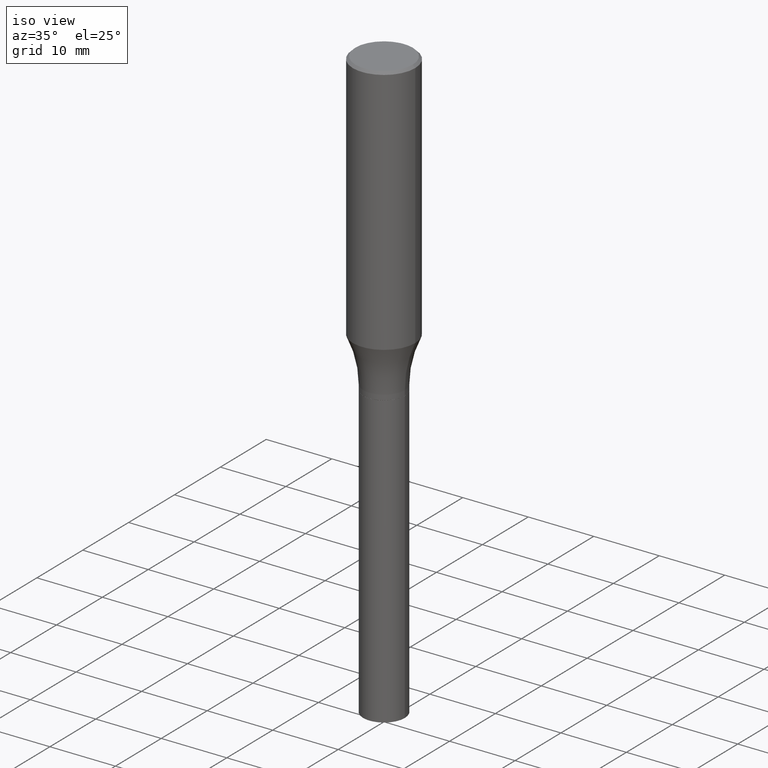
[diagram: clean part render]
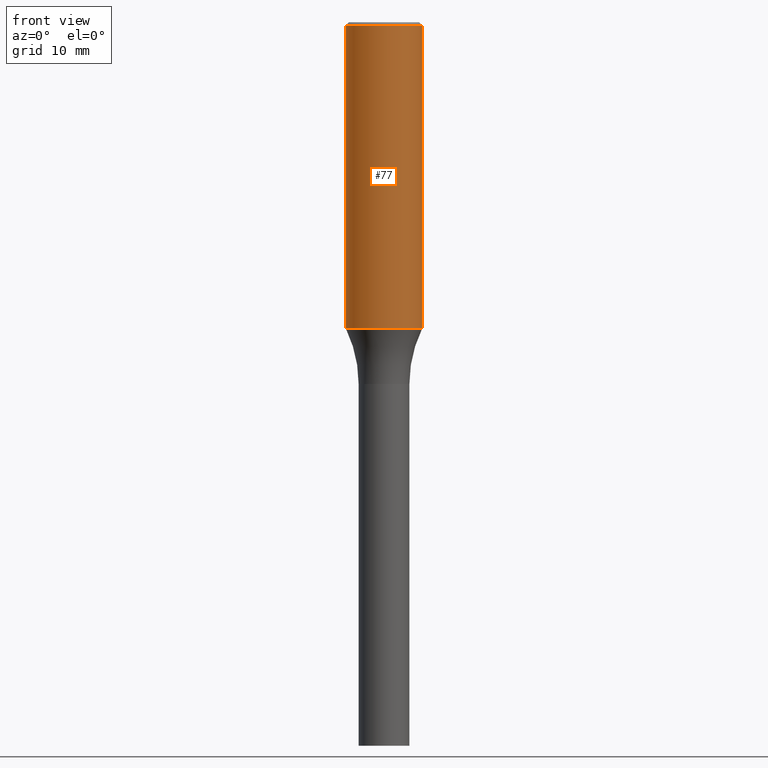
[diagram: tour spotlight — one face highlighted and labeled with its STEP entity id]
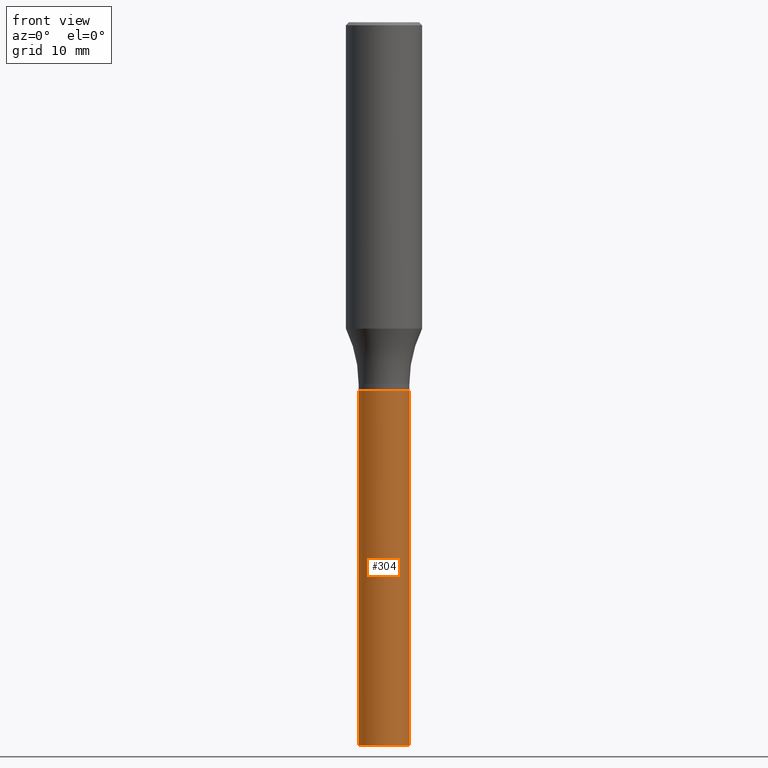
[diagram: tour spotlight — one face highlighted and labeled with its STEP entity id]
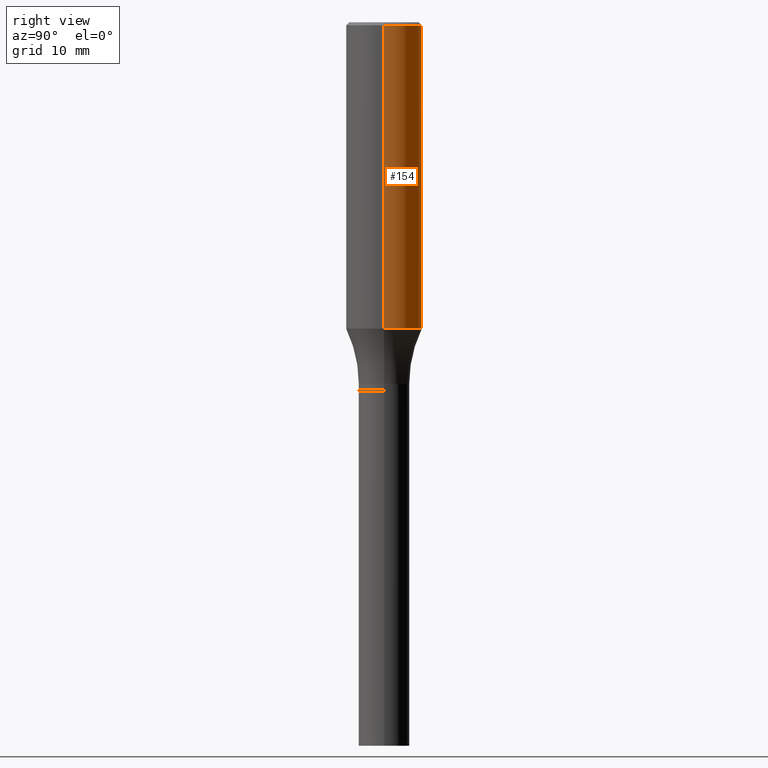
[diagram: tour spotlight — one face highlighted and labeled with its STEP entity id]
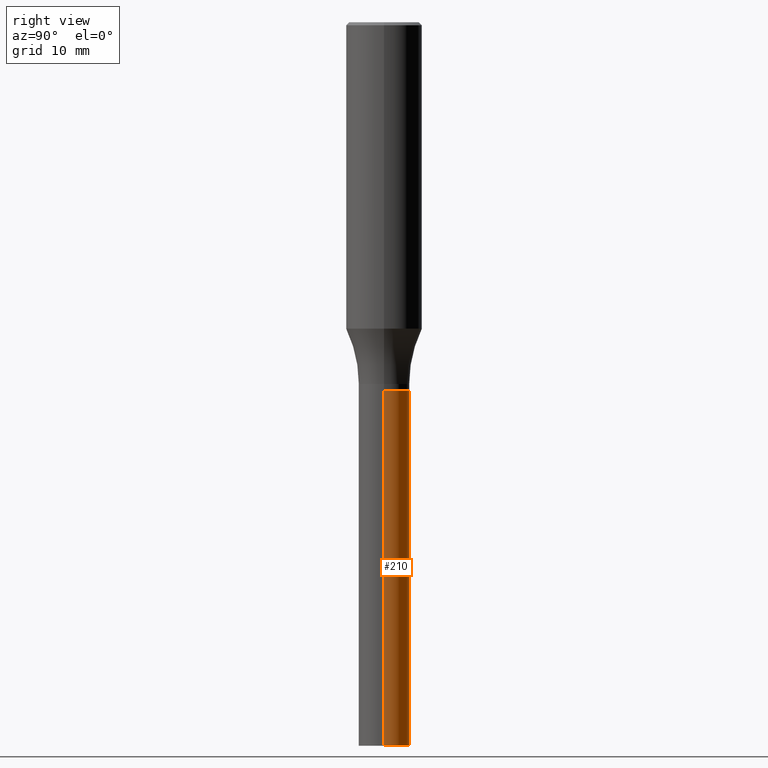
[diagram: tour spotlight — one face highlighted and labeled with its STEP entity id]
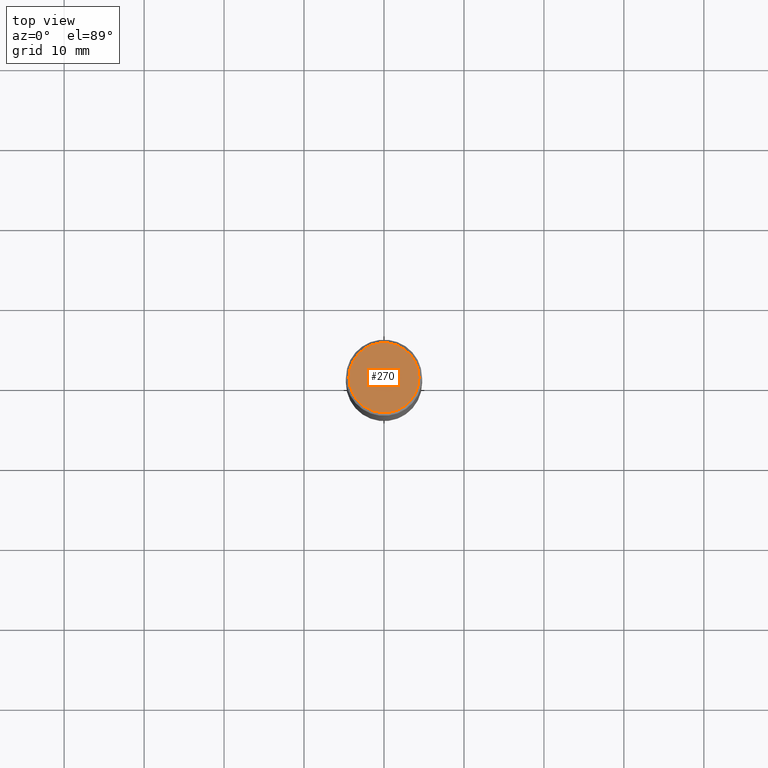
[diagram: tour spotlight — one face highlighted and labeled with its STEP entity id]
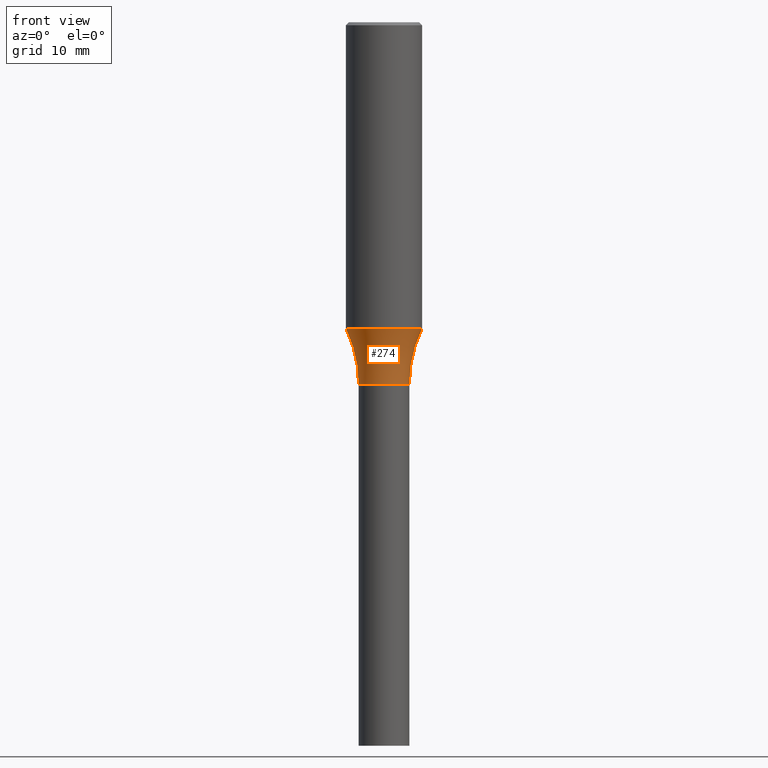
[diagram: tour spotlight — one face highlighted and labeled with its STEP entity id]
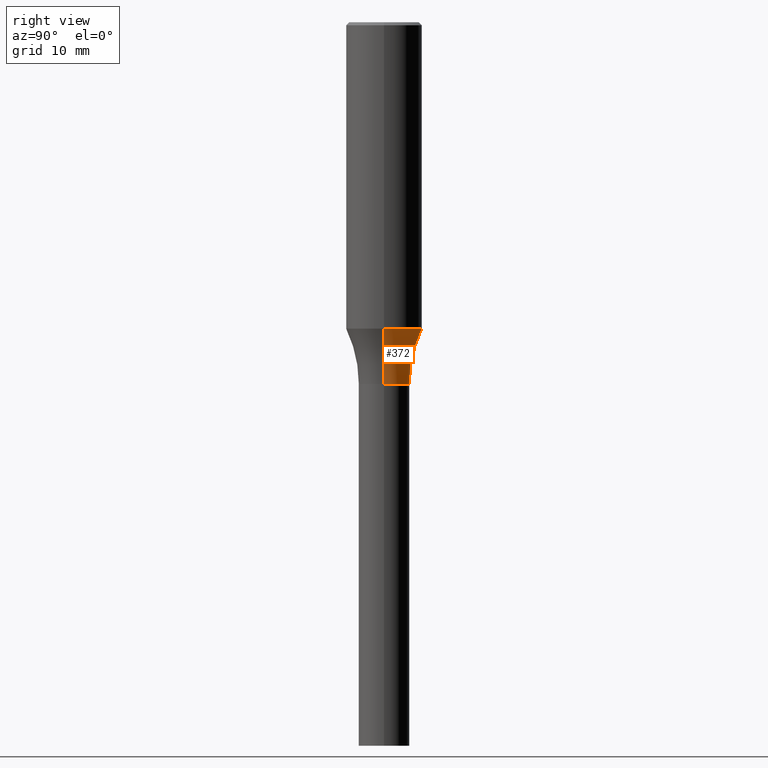
[diagram: tour spotlight — one face highlighted and labeled with its STEP entity id]
A machine part: a face-by-face anatomy tour. The part has 16 B-rep faces; the first image is the clean iso view, then the 7 largest visible faces are spotlighted one at a time (largest first), each with its STEP entity span.

Face 1 — front view, entity #77. In plain terms, the highlighted cylindrical surface (partial cylindrical patch) has radius 4.7625 mm, axis along (-0, 0, 1).
Definition (entity closure, byte-faithful):
#9 = CARTESIAN_POINT ( 'NONE',  ( 0.1875000000000000278, -1.338715594664809642E-15, -0.01499999999999999944 ) ) ;
#31 = AXIS2_PLACEMENT_3D ( 'NONE', #198, #259, #453 ) ;
#36 = DIRECTION ( 'NONE',  ( 1.000000000000000000, -6.982962677686265922E-15, 4.876176775795935793E-29 ) ) ;
#48 = LINE ( 'NONE', #295, #465 ) ;
#62 = AXIS2_PLACEMENT_3D ( 'NONE', #118, #78, #36 ) ;
#77 = ADVANCED_FACE ( 'NONE', ( #342 ), #339, .T. ) ;
#78 = DIRECTION ( 'NONE',  ( -2.445468806185136597E-29, 3.491481338843145583E-15, 1.000000000000000000 ) ) ;
#89 = EDGE_CURVE ( 'NONE', #356, #435, #296, .T. ) ;
#109 = DIRECTION ( 'NONE',  ( -2.445468806185136877E-29, 3.491481338843145188E-15, 1.000000000000000000 ) ) ;
#118 = CARTESIAN_POINT ( 'NONE',  ( 0.000000000000000000, 0.000000000000000000, 0.000000000000000000 ) ) ;
#119 = DIRECTION ( 'NONE',  ( -2.445468806185136877E-29, 3.491481338843145188E-15, 1.000000000000000000 ) ) ;
#142 = ORIENTED_EDGE ( 'NONE', *, *, #300, .F. ) ;
#160 = CARTESIAN_POINT ( 'NONE',  ( 0.1875000000000000555, -6.576445371591104685E-15, -1.508568816028707404 ) ) ;
#169 = CARTESIAN_POINT ( 'NONE',  ( -0.1875000000000000278, 1.256933281983527732E-15, -0.01499999999999999944 ) ) ;
#185 = DIRECTION ( 'NONE',  ( 1.000000000000000000, -6.982962677686265922E-15, 0.000000000000000000 ) ) ;
#194 = AXIS2_PLACEMENT_3D ( 'NONE', #260, #225, #185 ) ;
#198 = CARTESIAN_POINT ( 'NONE',  ( 3.668203209277705088E-31, -5.237222008264718399E-17, -0.01499999999999999944 ) ) ;
#220 = CARTESIAN_POINT ( 'NONE',  ( 0.1875000000000000555, -1.309305502066175205E-15, 9.142831454617382414E-30 ) ) ;
#225 = DIRECTION ( 'NONE',  ( -2.445468806185136597E-29, 3.491481338843145583E-15, 1.000000000000000000 ) ) ;
#236 = CIRCLE ( 'NONE', #31, 0.1875000000000000278 ) ;
#246 = VERTEX_POINT ( 'NONE', #388 ) ;
#259 = DIRECTION ( 'NONE',  ( -2.445468806185136597E-29, 3.491481338843145583E-15, 1.000000000000000000 ) ) ;
#260 = CARTESIAN_POINT ( 'NONE',  ( 3.689157981581848142E-29, -5.267139869524930466E-15, -1.508568816028707404 ) ) ;
#267 = ORIENTED_EDGE ( 'NONE', *, *, #446, .F. ) ;
#272 = ORIENTED_EDGE ( 'NONE', *, *, #89, .T. ) ;
#282 = EDGE_CURVE ( 'NONE', #246, #356, #429, .T. ) ;
#295 = CARTESIAN_POINT ( 'NONE',  ( -0.1875000000000000555, 1.332267629550188243E-15, -9.223003294227950793E-30 ) ) ;
#296 = LINE ( 'NONE', #220, #331 ) ;
#300 = EDGE_CURVE ( 'NONE', #246, #410, #48, .T. ) ;
#331 = VECTOR ( 'NONE', #109, 39.37007874015748143 ) ;
#339 = CYLINDRICAL_SURFACE ( 'NONE', #62, 0.1875000000000000555 ) ;
#342 = FACE_OUTER_BOUND ( 'NONE', #353, .T. ) ;
#353 = EDGE_LOOP ( 'NONE', ( #142, #384, #272, #267 ) ) ;
#356 = VERTEX_POINT ( 'NONE', #160 ) ;
#384 = ORIENTED_EDGE ( 'NONE', *, *, #282, .T. ) ;
#388 = CARTESIAN_POINT ( 'NONE',  ( -0.1875000000000000555, -3.934872239974741828E-15, -1.508568816028707404 ) ) ;
#410 = VERTEX_POINT ( 'NONE', #169 ) ;
#429 = CIRCLE ( 'NONE', #194, 0.1875000000000000555 ) ;
#435 = VERTEX_POINT ( 'NONE', #9 ) ;
#446 = EDGE_CURVE ( 'NONE', #410, #435, #236, .T. ) ;
#453 = DIRECTION ( 'NONE',  ( 1.000000000000000000, -6.982962677686265922E-15, 0.000000000000000000 ) ) ;
#465 = VECTOR ( 'NONE', #119, 39.37007874015748143 ) ;

Face 2 — front view, entity #304. In plain terms, the highlighted cylindrical surface (edge-blend (fillet) strip) has radius 3.175 mm, axis along (-0, 0, 1).
Definition (entity closure, byte-faithful):
#3 = CARTESIAN_POINT ( 'NONE',  ( 0.1250000000000000555, -8.728703347107838319E-16, 6.095220969744923244E-30 ) ) ;
#8 = ORIENTED_EDGE ( 'NONE', *, *, #402, .T. ) ;
#10 = VECTOR ( 'NONE', #183, 39.37007874015748143 ) ;
#16 = VERTEX_POINT ( 'NONE', #49 ) ;
#49 = CARTESIAN_POINT ( 'NONE',  ( 0.1250000000000000555, -7.199434520694563130E-15, -1.811999999999999611 ) ) ;
#61 = CARTESIAN_POINT ( 'NONE',  ( 4.431189476807466720E-29, -6.326564185983779002E-15, -1.811999999999999611 ) ) ;
#84 = DIRECTION ( 'NONE',  ( 1.000000000000000000, -6.982962677686267499E-15, 0.000000000000000000 ) ) ;
#92 = AXIS2_PLACEMENT_3D ( 'NONE', #61, #234, #84 ) ;
#102 = CARTESIAN_POINT ( 'NONE',  ( 0.1250000000000000555, -1.330952686367006701E-14, -3.561999999999999833 ) ) ;
#107 = CIRCLE ( 'NONE', #381, 0.1250000000000000555 ) ;
#125 = EDGE_CURVE ( 'NONE', #401, #189, #107, .T. ) ;
#138 = VERTEX_POINT ( 'NONE', #241 ) ;
#144 = EDGE_LOOP ( 'NONE', ( #277, #398, #8, #162 ) ) ;
#162 = ORIENTED_EDGE ( 'NONE', *, *, #450, .F. ) ;
#176 = LINE ( 'NONE', #3, #261 ) ;
#183 = DIRECTION ( 'NONE',  ( -2.445468806185136877E-29, 3.491481338843145188E-15, 1.000000000000000000 ) ) ;
#188 = DIRECTION ( 'NONE',  ( -2.445468806185136597E-29, 3.491481338843145583E-15, 1.000000000000000000 ) ) ;
#189 = VERTEX_POINT ( 'NONE', #102 ) ;
#207 = LINE ( 'NONE', #216, #10 ) ;
#216 = CARTESIAN_POINT ( 'NONE',  ( -0.1250000000000000555, 8.881784197001256268E-16, -6.148668862818635730E-30 ) ) ;
#218 = DIRECTION ( 'NONE',  ( -2.445468806185136877E-29, 3.491481338843145188E-15, 1.000000000000000000 ) ) ;
#219 = DIRECTION ( 'NONE',  ( -2.445468806185136597E-29, 3.491481338843145583E-15, 1.000000000000000000 ) ) ;
#234 = DIRECTION ( 'NONE',  ( -2.445468806185136597E-29, 3.491481338843145583E-15, 1.000000000000000000 ) ) ;
#241 = CARTESIAN_POINT ( 'NONE',  ( -0.1250000000000000555, -8.493431937771405711E-15, -1.811999999999999611 ) ) ;
#256 = CARTESIAN_POINT ( 'NONE',  ( 0.000000000000000000, 0.000000000000000000, 0.000000000000000000 ) ) ;
#257 = FACE_OUTER_BOUND ( 'NONE', #144, .T. ) ;
#261 = VECTOR ( 'NONE', #218, 39.37007874015748143 ) ;
#275 = AXIS2_PLACEMENT_3D ( 'NONE', #256, #188, #341 ) ;
#277 = ORIENTED_EDGE ( 'NONE', *, *, #385, .F. ) ;
#285 = DIRECTION ( 'NONE',  ( 1.000000000000000000, -6.982962677686259611E-15, 0.000000000000000000 ) ) ;
#292 = CIRCLE ( 'NONE', #92, 0.1250000000000000555 ) ;
#304 = ADVANCED_FACE ( 'NONE', ( #257 ), #405, .T. ) ;
#341 = DIRECTION ( 'NONE',  ( 1.000000000000000000, -6.982962677686267499E-15, 4.876176775795936353E-29 ) ) ;
#359 = CARTESIAN_POINT ( 'NONE',  ( -0.1250000000000000555, -8.493431937771405711E-15, -3.561999999999999833 ) ) ;
#370 = CARTESIAN_POINT ( 'NONE',  ( 8.710759887631456325E-29, -1.243665652895928367E-14, -3.561999999999999833 ) ) ;
#381 = AXIS2_PLACEMENT_3D ( 'NONE', #370, #219, #285 ) ;
#385 = EDGE_CURVE ( 'NONE', #401, #138, #207, .T. ) ;
#398 = ORIENTED_EDGE ( 'NONE', *, *, #125, .T. ) ;
#401 = VERTEX_POINT ( 'NONE', #359 ) ;
#402 = EDGE_CURVE ( 'NONE', #189, #16, #176, .T. ) ;
#405 = CYLINDRICAL_SURFACE ( 'NONE', #275, 0.1250000000000000555 ) ;
#450 = EDGE_CURVE ( 'NONE', #138, #16, #292, .T. ) ;

Face 3 — right view, entity #154. In plain terms, the highlighted cylindrical surface (partial cylindrical patch) has radius 4.7625 mm, axis along (-0, 0, 1).
Definition (entity closure, byte-faithful):
#4 = CARTESIAN_POINT ( 'NONE',  ( 3.668203209277705088E-31, -5.237222008264718399E-17, -0.01499999999999999944 ) ) ;
#9 = CARTESIAN_POINT ( 'NONE',  ( 0.1875000000000000278, -1.338715594664809642E-15, -0.01499999999999999944 ) ) ;
#13 = ORIENTED_EDGE ( 'NONE', *, *, #89, .F. ) ;
#20 = CARTESIAN_POINT ( 'NONE',  ( 0.000000000000000000, 0.000000000000000000, 0.000000000000000000 ) ) ;
#25 = ORIENTED_EDGE ( 'NONE', *, *, #121, .F. ) ;
#26 = CYLINDRICAL_SURFACE ( 'NONE', #371, 0.1875000000000000555 ) ;
#48 = LINE ( 'NONE', #295, #465 ) ;
#70 = ORIENTED_EDGE ( 'NONE', *, *, #300, .T. ) ;
#75 = DIRECTION ( 'NONE',  ( -2.445468806185136597E-29, 3.491481338843145583E-15, 1.000000000000000000 ) ) ;
#89 = EDGE_CURVE ( 'NONE', #356, #435, #296, .T. ) ;
#97 = CARTESIAN_POINT ( 'NONE',  ( 3.689157981581848142E-29, -5.267139869524930466E-15, -1.508568816028707404 ) ) ;
#105 = ORIENTED_EDGE ( 'NONE', *, *, #150, .T. ) ;
#109 = DIRECTION ( 'NONE',  ( -2.445468806185136877E-29, 3.491481338843145188E-15, 1.000000000000000000 ) ) ;
#119 = DIRECTION ( 'NONE',  ( -2.445468806185136877E-29, 3.491481338843145188E-15, 1.000000000000000000 ) ) ;
#121 = EDGE_CURVE ( 'NONE', #435, #410, #343, .T. ) ;
#145 = AXIS2_PLACEMENT_3D ( 'NONE', #4, #75, #400 ) ;
#150 = EDGE_CURVE ( 'NONE', #356, #246, #355, .T. ) ;
#154 = ADVANCED_FACE ( 'NONE', ( #273 ), #26, .T. ) ;
#160 = CARTESIAN_POINT ( 'NONE',  ( 0.1875000000000000555, -6.576445371591104685E-15, -1.508568816028707404 ) ) ;
#169 = CARTESIAN_POINT ( 'NONE',  ( -0.1875000000000000278, 1.256933281983527732E-15, -0.01499999999999999944 ) ) ;
#202 = DIRECTION ( 'NONE',  ( -2.445468806185136597E-29, 3.491481338843145583E-15, 1.000000000000000000 ) ) ;
#220 = CARTESIAN_POINT ( 'NONE',  ( 0.1875000000000000555, -1.309305502066175205E-15, 9.142831454617382414E-30 ) ) ;
#246 = VERTEX_POINT ( 'NONE', #388 ) ;
#250 = AXIS2_PLACEMENT_3D ( 'NONE', #97, #202, #354 ) ;
#273 = FACE_OUTER_BOUND ( 'NONE', #303, .T. ) ;
#295 = CARTESIAN_POINT ( 'NONE',  ( -0.1875000000000000555, 1.332267629550188243E-15, -9.223003294227950793E-30 ) ) ;
#296 = LINE ( 'NONE', #220, #331 ) ;
#300 = EDGE_CURVE ( 'NONE', #246, #410, #48, .T. ) ;
#303 = EDGE_LOOP ( 'NONE', ( #105, #70, #25, #13 ) ) ;
#331 = VECTOR ( 'NONE', #109, 39.37007874015748143 ) ;
#343 = CIRCLE ( 'NONE', #145, 0.1875000000000000278 ) ;
#354 = DIRECTION ( 'NONE',  ( 1.000000000000000000, -6.982962677686265922E-15, 0.000000000000000000 ) ) ;
#355 = CIRCLE ( 'NONE', #250, 0.1875000000000000555 ) ;
#356 = VERTEX_POINT ( 'NONE', #160 ) ;
#371 = AXIS2_PLACEMENT_3D ( 'NONE', #20, #462, #427 ) ;
#388 = CARTESIAN_POINT ( 'NONE',  ( -0.1875000000000000555, -3.934872239974741828E-15, -1.508568816028707404 ) ) ;
#400 = DIRECTION ( 'NONE',  ( 1.000000000000000000, -6.982962677686265922E-15, 0.000000000000000000 ) ) ;
#410 = VERTEX_POINT ( 'NONE', #169 ) ;
#427 = DIRECTION ( 'NONE',  ( 1.000000000000000000, -6.982962677686265922E-15, 4.876176775795935793E-29 ) ) ;
#435 = VERTEX_POINT ( 'NONE', #9 ) ;
#462 = DIRECTION ( 'NONE',  ( -2.445468806185136597E-29, 3.491481338843145583E-15, 1.000000000000000000 ) ) ;
#465 = VECTOR ( 'NONE', #119, 39.37007874015748143 ) ;

Face 4 — right view, entity #210. In plain terms, the highlighted cylindrical surface (edge-blend (fillet) strip) has radius 3.175 mm, axis along (-0, 0, 1).
Definition (entity closure, byte-faithful):
#3 = CARTESIAN_POINT ( 'NONE',  ( 0.1250000000000000555, -8.728703347107838319E-16, 6.095220969744923244E-30 ) ) ;
#10 = VECTOR ( 'NONE', #183, 39.37007874015748143 ) ;
#16 = VERTEX_POINT ( 'NONE', #49 ) ;
#49 = CARTESIAN_POINT ( 'NONE',  ( 0.1250000000000000555, -7.199434520694563130E-15, -1.811999999999999611 ) ) ;
#64 = AXIS2_PLACEMENT_3D ( 'NONE', #205, #392, #315 ) ;
#102 = CARTESIAN_POINT ( 'NONE',  ( 0.1250000000000000555, -1.330952686367006701E-14, -3.561999999999999833 ) ) ;
#104 = CIRCLE ( 'NONE', #64, 0.1250000000000000555 ) ;
#113 = ORIENTED_EDGE ( 'NONE', *, *, #402, .F. ) ;
#129 = EDGE_CURVE ( 'NONE', #16, #138, #104, .T. ) ;
#138 = VERTEX_POINT ( 'NONE', #241 ) ;
#147 = EDGE_CURVE ( 'NONE', #189, #401, #437, .T. ) ;
#151 = EDGE_LOOP ( 'NONE', ( #464, #348, #179, #113 ) ) ;
#176 = LINE ( 'NONE', #3, #261 ) ;
#179 = ORIENTED_EDGE ( 'NONE', *, *, #129, .F. ) ;
#180 = AXIS2_PLACEMENT_3D ( 'NONE', #456, #252, #212 ) ;
#183 = DIRECTION ( 'NONE',  ( -2.445468806185136877E-29, 3.491481338843145188E-15, 1.000000000000000000 ) ) ;
#189 = VERTEX_POINT ( 'NONE', #102 ) ;
#205 = CARTESIAN_POINT ( 'NONE',  ( 4.431189476807466720E-29, -6.326564185983779002E-15, -1.811999999999999611 ) ) ;
#207 = LINE ( 'NONE', #216, #10 ) ;
#210 = ADVANCED_FACE ( 'NONE', ( #307 ), #423, .T. ) ;
#212 = DIRECTION ( 'NONE',  ( 1.000000000000000000, -6.982962677686267499E-15, 4.876176775795936353E-29 ) ) ;
#216 = CARTESIAN_POINT ( 'NONE',  ( -0.1250000000000000555, 8.881784197001256268E-16, -6.148668862818635730E-30 ) ) ;
#218 = DIRECTION ( 'NONE',  ( -2.445468806185136877E-29, 3.491481338843145188E-15, 1.000000000000000000 ) ) ;
#241 = CARTESIAN_POINT ( 'NONE',  ( -0.1250000000000000555, -8.493431937771405711E-15, -1.811999999999999611 ) ) ;
#252 = DIRECTION ( 'NONE',  ( -2.445468806185136597E-29, 3.491481338843145583E-15, 1.000000000000000000 ) ) ;
#261 = VECTOR ( 'NONE', #218, 39.37007874015748143 ) ;
#302 = AXIS2_PLACEMENT_3D ( 'NONE', #395, #425, #357 ) ;
#307 = FACE_OUTER_BOUND ( 'NONE', #151, .T. ) ;
#315 = DIRECTION ( 'NONE',  ( 1.000000000000000000, -6.982962677686267499E-15, 0.000000000000000000 ) ) ;
#348 = ORIENTED_EDGE ( 'NONE', *, *, #385, .T. ) ;
#357 = DIRECTION ( 'NONE',  ( 1.000000000000000000, -6.982962677686259611E-15, 0.000000000000000000 ) ) ;
#359 = CARTESIAN_POINT ( 'NONE',  ( -0.1250000000000000555, -8.493431937771405711E-15, -3.561999999999999833 ) ) ;
#385 = EDGE_CURVE ( 'NONE', #401, #138, #207, .T. ) ;
#392 = DIRECTION ( 'NONE',  ( -2.445468806185136597E-29, 3.491481338843145583E-15, 1.000000000000000000 ) ) ;
#395 = CARTESIAN_POINT ( 'NONE',  ( 8.710759887631456325E-29, -1.243665652895928367E-14, -3.561999999999999833 ) ) ;
#401 = VERTEX_POINT ( 'NONE', #359 ) ;
#402 = EDGE_CURVE ( 'NONE', #189, #16, #176, .T. ) ;
#423 = CYLINDRICAL_SURFACE ( 'NONE', #180, 0.1250000000000000555 ) ;
#425 = DIRECTION ( 'NONE',  ( -2.445468806185136597E-29, 3.491481338843145583E-15, 1.000000000000000000 ) ) ;
#437 = CIRCLE ( 'NONE', #302, 0.1250000000000000555 ) ;
#456 = CARTESIAN_POINT ( 'NONE',  ( 0.000000000000000000, 0.000000000000000000, 0.000000000000000000 ) ) ;
#464 = ORIENTED_EDGE ( 'NONE', *, *, #147, .T. ) ;

Face 5 — top view, entity #270. In plain terms, the highlighted planar face has unit normal (0, -0, -1).
Definition (entity closure, byte-faithful):
#11 = DIRECTION ( 'NONE',  ( 1.000000000000000000, -6.982962677686266711E-15, 4.874714842691873619E-29 ) ) ;
#27 = CARTESIAN_POINT ( 'NONE',  ( 1.511595370828340099E-45, -2.158157575259326350E-31, -6.181208964944381512E-17 ) ) ;
#56 = FACE_OUTER_BOUND ( 'NONE', #426, .T. ) ;
#59 = ORIENTED_EDGE ( 'NONE', *, *, #289, .T. ) ;
#83 = VERTEX_POINT ( 'NONE', #226 ) ;
#139 = CARTESIAN_POINT ( 'NONE',  ( 0.1725000000000000144, -1.261075749640199505E-15, -6.181208964943518695E-17 ) ) ;
#141 = CIRCLE ( 'NONE', #255, 0.1725000000000000144 ) ;
#152 = AXIS2_PLACEMENT_3D ( 'NONE', #298, #344, #443 ) ;
#174 = VERTEX_POINT ( 'NONE', #139 ) ;
#223 = CIRCLE ( 'NONE', #448, 0.1725000000000000144 ) ;
#226 = CARTESIAN_POINT ( 'NONE',  ( -0.1725000000000000144, 1.230747171942204192E-15, -6.181208964945233235E-17 ) ) ;
#255 = AXIS2_PLACEMENT_3D ( 'NONE', #27, #276, #432 ) ;
#270 = ADVANCED_FACE ( 'NONE', ( #56 ), #349, .F. ) ;
#276 = DIRECTION ( 'NONE',  ( -2.445468806185136597E-29, 3.491481338843145583E-15, 1.000000000000000000 ) ) ;
#289 = EDGE_CURVE ( 'NONE', #83, #174, #223, .T. ) ;
#298 = CARTESIAN_POINT ( 'NONE',  ( 1.204561061900881047E-15, 0.1725000000000000144, -6.331865757751645696E-16 ) ) ;
#344 = DIRECTION ( 'NONE',  ( 2.438088387897960049E-29, -3.491481338843145188E-15, -1.000000000000000000 ) ) ;
#349 = PLANE ( 'NONE',  #152 ) ;
#366 = EDGE_CURVE ( 'NONE', #174, #83, #141, .T. ) ;
#374 = DIRECTION ( 'NONE',  ( -2.445468806185136597E-29, 3.491481338843145583E-15, 1.000000000000000000 ) ) ;
#379 = CARTESIAN_POINT ( 'NONE',  ( 1.511595370828340099E-45, -2.158157575259326350E-31, -6.181208964944381512E-17 ) ) ;
#426 = EDGE_LOOP ( 'NONE', ( #59, #436 ) ) ;
#432 = DIRECTION ( 'NONE',  ( 1.000000000000000000, -6.982962677686266711E-15, 4.874714842691873619E-29 ) ) ;
#436 = ORIENTED_EDGE ( 'NONE', *, *, #366, .T. ) ;
#443 = DIRECTION ( 'NONE',  ( -1.000000000000000000, 6.982962677686265922E-15, -4.876176775795935793E-29 ) ) ;
#448 = AXIS2_PLACEMENT_3D ( 'NONE', #379, #374, #11 ) ;

Face 6 — front view, entity #274. In plain terms, the highlighted toroidal blend (fillet) surface has major radius 19.05 mm and minor (blend) radius 15.875 mm.
Definition (entity closure, byte-faithful):
#29 = EDGE_CURVE ( 'NONE', #246, #184, #116, .T. ) ;
#40 = AXIS2_PLACEMENT_3D ( 'NONE', #44, #122, #149 ) ;
#42 = ORIENTED_EDGE ( 'NONE', *, *, #168, .F. ) ;
#44 = CARTESIAN_POINT ( 'NONE',  ( 4.355379943815728162E-29, -6.218328264479641837E-15, -1.780999999999999917 ) ) ;
#47 = AXIS2_PLACEMENT_3D ( 'NONE', #367, #444, #120 ) ;
#57 = DIRECTION ( 'NONE',  ( -1.000000000000000000, 7.105427357601001859E-15, 0.000000000000000000 ) ) ;
#103 = ORIENTED_EDGE ( 'NONE', *, *, #110, .T. ) ;
#110 = EDGE_CURVE ( 'NONE', #184, #365, #332, .T. ) ;
#116 = CIRCLE ( 'NONE', #386, 0.6250000000000000000 ) ;
#120 = DIRECTION ( 'NONE',  ( 1.000000000000000000, -6.982962677686265133E-15, 0.000000000000000000 ) ) ;
#122 = DIRECTION ( 'NONE',  ( -2.445468806185136597E-29, 3.491481338843145583E-15, 1.000000000000000000 ) ) ;
#135 = DIRECTION ( 'NONE',  ( 1.000000000000000000, -6.982962677686265133E-15, 0.000000000000000000 ) ) ;
#149 = DIRECTION ( 'NONE',  ( 1.000000000000000000, -6.982962677686265922E-15, 4.883557194083112340E-29 ) ) ;
#153 = CIRCLE ( 'NONE', #230, 0.6250000000000000000 ) ;
#160 = CARTESIAN_POINT ( 'NONE',  ( 0.1875000000000000555, -6.576445371591104685E-15, -1.508568816028707404 ) ) ;
#168 = EDGE_CURVE ( 'NONE', #356, #365, #153, .T. ) ;
#184 = VERTEX_POINT ( 'NONE', #271 ) ;
#185 = DIRECTION ( 'NONE',  ( 1.000000000000000000, -6.982962677686265922E-15, 0.000000000000000000 ) ) ;
#194 = AXIS2_PLACEMENT_3D ( 'NONE', #260, #225, #185 ) ;
#214 = TOROIDAL_SURFACE ( 'NONE', #40, 0.7499999999999998890, 0.6250000000000000000 ) ;
#225 = DIRECTION ( 'NONE',  ( -2.445468806185136597E-29, 3.491481338843145583E-15, 1.000000000000000000 ) ) ;
#229 = FACE_OUTER_BOUND ( 'NONE', #251, .T. ) ;
#230 = AXIS2_PLACEMENT_3D ( 'NONE', #319, #421, #135 ) ;
#246 = VERTEX_POINT ( 'NONE', #388 ) ;
#251 = EDGE_LOOP ( 'NONE', ( #438, #420, #103, #42 ) ) ;
#260 = CARTESIAN_POINT ( 'NONE',  ( 3.689157981581848142E-29, -5.267139869524930466E-15, -1.508568816028707404 ) ) ;
#271 = CARTESIAN_POINT ( 'NONE',  ( -0.1249999999999999584, -4.632511042377129611E-15, -1.780999999999999917 ) ) ;
#274 = ADVANCED_FACE ( 'NONE', ( #229 ), #214, .F. ) ;
#278 = DIRECTION ( 'NONE',  ( 7.105427357601001859E-15, 1.000000000000000000, -3.491481338843145583E-15 ) ) ;
#282 = EDGE_CURVE ( 'NONE', #246, #356, #429, .T. ) ;
#319 = CARTESIAN_POINT ( 'NONE',  ( 0.7499999999999998890, -1.145555027274434187E-14, -1.780999999999999917 ) ) ;
#332 = CIRCLE ( 'NONE', #47, 0.1249999999999999584 ) ;
#356 = VERTEX_POINT ( 'NONE', #160 ) ;
#358 = CARTESIAN_POINT ( 'NONE',  ( 0.1249999999999999584, -7.091198599190425175E-15, -1.780999999999999917 ) ) ;
#365 = VERTEX_POINT ( 'NONE', #358 ) ;
#367 = CARTESIAN_POINT ( 'NONE',  ( 4.355379943815728162E-29, -6.218328264479641837E-15, -1.780999999999999917 ) ) ;
#386 = AXIS2_PLACEMENT_3D ( 'NONE', #393, #278, #57 ) ;
#388 = CARTESIAN_POINT ( 'NONE',  ( -0.1875000000000000555, -3.934872239974741828E-15, -1.508568816028707404 ) ) ;
#393 = CARTESIAN_POINT ( 'NONE',  ( -0.7499999999999998890, -8.892577462788912314E-16, -1.780999999999999917 ) ) ;
#420 = ORIENTED_EDGE ( 'NONE', *, *, #29, .T. ) ;
#421 = DIRECTION ( 'NONE',  ( -6.982962677686266711E-15, -1.000000000000000000, 3.491481338843145583E-15 ) ) ;
#429 = CIRCLE ( 'NONE', #194, 0.1875000000000000555 ) ;
#438 = ORIENTED_EDGE ( 'NONE', *, *, #282, .F. ) ;
#444 = DIRECTION ( 'NONE',  ( -2.445468806185136597E-29, 3.491481338843145583E-15, 1.000000000000000000 ) ) ;

Face 7 — right view, entity #372. In plain terms, the highlighted toroidal blend (fillet) surface has major radius 19.05 mm and minor (blend) radius 15.875 mm.
Definition (entity closure, byte-faithful):
#29 = EDGE_CURVE ( 'NONE', #246, #184, #116, .T. ) ;
#30 = DIRECTION ( 'NONE',  ( 1.000000000000000000, -6.982962677686265133E-15, 0.000000000000000000 ) ) ;
#54 = TOROIDAL_SURFACE ( 'NONE', #325, 0.7499999999999998890, 0.6250000000000000000 ) ;
#57 = DIRECTION ( 'NONE',  ( -1.000000000000000000, 7.105427357601001859E-15, 0.000000000000000000 ) ) ;
#67 = EDGE_CURVE ( 'NONE', #365, #184, #235, .T. ) ;
#97 = CARTESIAN_POINT ( 'NONE',  ( 3.689157981581848142E-29, -5.267139869524930466E-15, -1.508568816028707404 ) ) ;
#106 = ORIENTED_EDGE ( 'NONE', *, *, #67, .T. ) ;
#112 = FACE_OUTER_BOUND ( 'NONE', #287, .T. ) ;
#116 = CIRCLE ( 'NONE', #386, 0.6250000000000000000 ) ;
#135 = DIRECTION ( 'NONE',  ( 1.000000000000000000, -6.982962677686265133E-15, 0.000000000000000000 ) ) ;
#140 = CARTESIAN_POINT ( 'NONE',  ( 4.355379943815728162E-29, -6.218328264479641837E-15, -1.780999999999999917 ) ) ;
#150 = EDGE_CURVE ( 'NONE', #356, #246, #355, .T. ) ;
#153 = CIRCLE ( 'NONE', #230, 0.6250000000000000000 ) ;
#160 = CARTESIAN_POINT ( 'NONE',  ( 0.1875000000000000555, -6.576445371591104685E-15, -1.508568816028707404 ) ) ;
#161 = DIRECTION ( 'NONE',  ( -2.445468806185136597E-29, 3.491481338843145583E-15, 1.000000000000000000 ) ) ;
#168 = EDGE_CURVE ( 'NONE', #356, #365, #153, .T. ) ;
#184 = VERTEX_POINT ( 'NONE', #271 ) ;
#201 = ORIENTED_EDGE ( 'NONE', *, *, #168, .T. ) ;
#202 = DIRECTION ( 'NONE',  ( -2.445468806185136597E-29, 3.491481338843145583E-15, 1.000000000000000000 ) ) ;
#213 = CARTESIAN_POINT ( 'NONE',  ( 4.355379943815728162E-29, -6.218328264479641837E-15, -1.780999999999999917 ) ) ;
#230 = AXIS2_PLACEMENT_3D ( 'NONE', #319, #421, #135 ) ;
#235 = CIRCLE ( 'NONE', #411, 0.1249999999999999584 ) ;
#246 = VERTEX_POINT ( 'NONE', #388 ) ;
#250 = AXIS2_PLACEMENT_3D ( 'NONE', #97, #202, #354 ) ;
#271 = CARTESIAN_POINT ( 'NONE',  ( -0.1249999999999999584, -4.632511042377129611E-15, -1.780999999999999917 ) ) ;
#278 = DIRECTION ( 'NONE',  ( 7.105427357601001859E-15, 1.000000000000000000, -3.491481338843145583E-15 ) ) ;
#287 = EDGE_LOOP ( 'NONE', ( #424, #447, #201, #106 ) ) ;
#319 = CARTESIAN_POINT ( 'NONE',  ( 0.7499999999999998890, -1.145555027274434187E-14, -1.780999999999999917 ) ) ;
#324 = DIRECTION ( 'NONE',  ( -2.445468806185136597E-29, 3.491481338843145583E-15, 1.000000000000000000 ) ) ;
#325 = AXIS2_PLACEMENT_3D ( 'NONE', #213, #324, #364 ) ;
#354 = DIRECTION ( 'NONE',  ( 1.000000000000000000, -6.982962677686265922E-15, 0.000000000000000000 ) ) ;
#355 = CIRCLE ( 'NONE', #250, 0.1875000000000000555 ) ;
#356 = VERTEX_POINT ( 'NONE', #160 ) ;
#358 = CARTESIAN_POINT ( 'NONE',  ( 0.1249999999999999584, -7.091198599190425175E-15, -1.780999999999999917 ) ) ;
#364 = DIRECTION ( 'NONE',  ( 1.000000000000000000, -6.982962677686265922E-15, 4.883557194083112340E-29 ) ) ;
#365 = VERTEX_POINT ( 'NONE', #358 ) ;
#372 = ADVANCED_FACE ( 'NONE', ( #112 ), #54, .F. ) ;
#386 = AXIS2_PLACEMENT_3D ( 'NONE', #393, #278, #57 ) ;
#388 = CARTESIAN_POINT ( 'NONE',  ( -0.1875000000000000555, -3.934872239974741828E-15, -1.508568816028707404 ) ) ;
#393 = CARTESIAN_POINT ( 'NONE',  ( -0.7499999999999998890, -8.892577462788912314E-16, -1.780999999999999917 ) ) ;
#411 = AXIS2_PLACEMENT_3D ( 'NONE', #140, #161, #30 ) ;
#421 = DIRECTION ( 'NONE',  ( -6.982962677686266711E-15, -1.000000000000000000, 3.491481338843145583E-15 ) ) ;
#424 = ORIENTED_EDGE ( 'NONE', *, *, #29, .F. ) ;
#447 = ORIENTED_EDGE ( 'NONE', *, *, #150, .F. ) ;